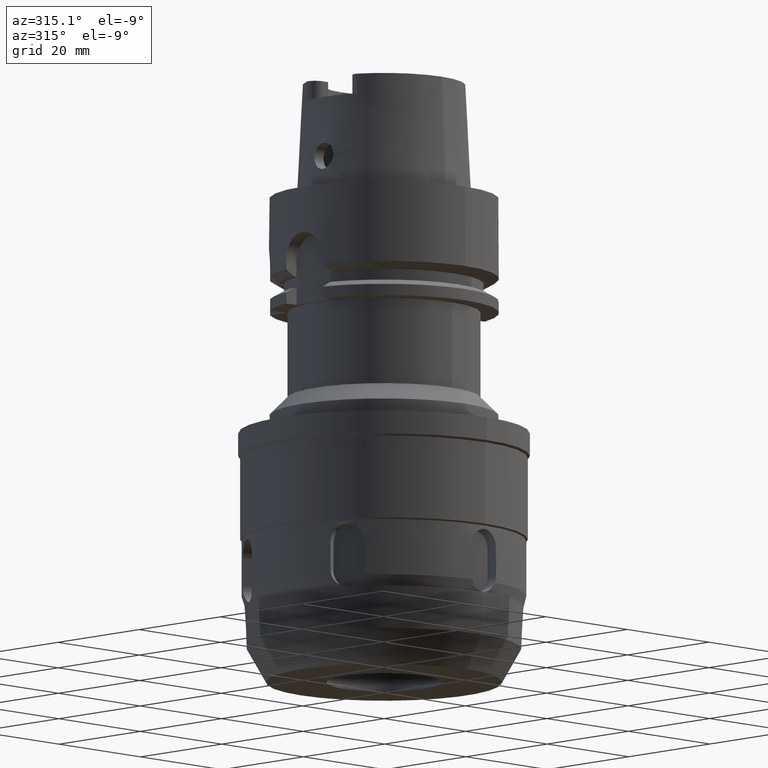
[diagram: clean part render]
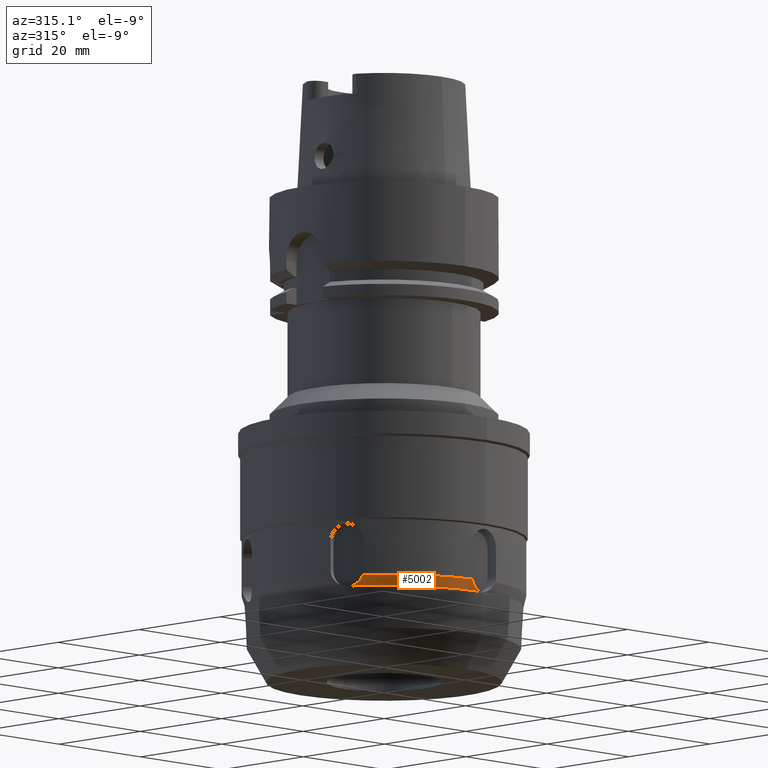
[diagram: same view with one face highlighted and labeled with its STEP entity id]
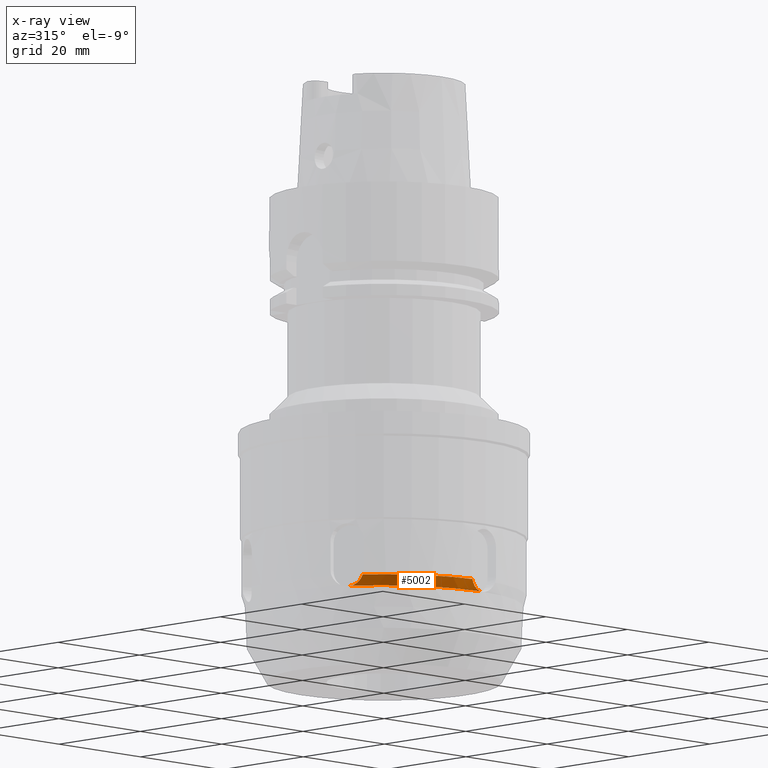
[diagram: x-ray of the same camera — body ghosted, the highlighted face saturated]
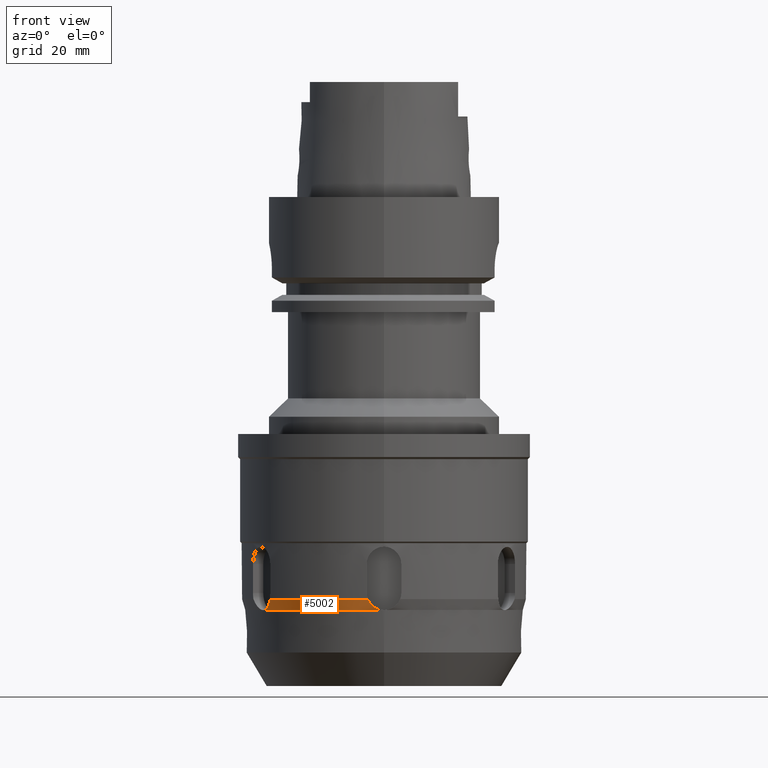
[diagram: same view with one face highlighted and labeled with its STEP entity id]
A machine part, auxiliary view. The second image highlights one B-rep face of the part: STEP entity #5002.
The next image is the same camera in x-ray: the body ghosted, the highlighted face saturated — about 0% of this face is hidden behind the body in this view.
A second angle (front view) of the same face is appended — the face is thin or edge-on in the first view.
In plain terms, the highlighted conical surface has half-angle 15 deg.
Its self-contained STEP definition (entity closure, byte-faithful):
#1008=CARTESIAN_POINT('',(-2.079201848961E1,-1.247709133473E1,
-7.177192446032E1));
#1508=CARTESIAN_POINT('',(-2.079201848961E1,-1.247709133473E1,
-7.177192446032E1));
#1509=CARTESIAN_POINT('',(-2.068981336827E1,-1.266260062391E1,
-7.174274859255E1));
#1510=CARTESIAN_POINT('',(-2.049493641327E1,-1.303043962910E1,
-7.163894974436E1));
#1511=CARTESIAN_POINT('',(-2.024678273927E1,-1.354739102620E1,
-7.135864290779E1));
#1512=CARTESIAN_POINT('',(-2.005430740522E1,-1.401557328495E1,
-7.096291945258E1));
#1513=CARTESIAN_POINT('',(-1.993250652424E1,-1.440987554179E1,
-7.047864577262E1));
#1514=CARTESIAN_POINT('',(-1.990230391034E1,-1.462277435190E1,
-7.009929135996E1));
#1515=CARTESIAN_POINT('',(-1.990187403559E1,-1.471324337131E1,
-6.989986679654E1));
#1520=CARTESIAN_POINT('',(0.E0,0.E0,-6.99E1));
#1521=DIRECTION('',(0.E0,0.E0,1.E0));
#1522=DIRECTION('',(-8.041164376613E-1,-5.944718283341E-1,0.E0));
#1523=AXIS2_PLACEMENT_3D('',#1520,#1521,#1522);
#1528=CARTESIAN_POINT('',(-2.791053671997E0,-2.459212355064E1,
-6.989999824656E1));
#1529=CARTESIAN_POINT('',(-2.712446460367E0,-2.454725859417E1,
-7.009945136657E1));
#1530=CARTESIAN_POINT('',(-2.512597321107E0,-2.446675259169E1,
-7.047974853086E1));
#1531=CARTESIAN_POINT('',(-2.107297384302E0,-2.437465802553E1,
-7.096657039973E1));
#1532=CARTESIAN_POINT('',(-1.602716075032E0,-2.430726550976E1,
-7.136270513573E1));
#1533=CARTESIAN_POINT('',(-1.030439818455E0,-2.426402586338E1,
-7.164118727878E1));
#1534=CARTESIAN_POINT('',(-6.183550048587E-1,-2.424914633103E1,
-7.174314554984E1));
#1535=CARTESIAN_POINT('',(-4.094641777312E-1,-2.424496167236E1,
-7.177192519367E1));
#1540=CARTESIAN_POINT('',(0.E0,0.E0,-7.177192445144E1));
#1541=DIRECTION('',(0.E0,0.E0,-1.E0));
#1542=DIRECTION('',(-1.688642998307E-2,-9.998574140758E-1,0.E0));
#1543=AXIS2_PLACEMENT_3D('',#1540,#1541,#1542);
#3661=VERTEX_POINT('',#1008);
#3662=CARTESIAN_POINT('',(-4.094692356374E-1,-2.424496187166E1,
-7.177192445144E1));
#3663=VERTEX_POINT('',#3662);
#3694=VERTEX_POINT('',#1515);
#3695=CARTESIAN_POINT('',(-2.791044648044E0,-2.459212414113E1,-6.99E1));
#3696=VERTEX_POINT('',#3695);
#4990=CARTESIAN_POINT('',(0.E0,0.E0,-7.083596222572E1));
#4991=DIRECTION('',(0.E0,0.E0,1.E0));
#4992=DIRECTION('',(0.E0,1.E0,0.E0));
#4993=AXIS2_PLACEMENT_3D('',#4990,#4991,#4992);
#4994=CONICAL_SURFACE('',#4993,2.449920967747E1,1.5E1);
#4996=ORIENTED_EDGE('',*,*,#4995,.T.);
#4997=ORIENTED_EDGE('',*,*,#4822,.T.);
#4998=ORIENTED_EDGE('',*,*,#4972,.T.);
#4999=ORIENTED_EDGE('',*,*,#4732,.T.);
#5000=EDGE_LOOP('',(#4996,#4997,#4998,#4999));
#5001=FACE_OUTER_BOUND('',#5000,.F.);
#1516=B_SPLINE_CURVE_WITH_KNOTS('',3,(#1508,#1509,#1510,#1511,#1512,#1513,#1514,
#1515),.UNSPECIFIED.,.F.,.F.,(4,1,1,1,1,4),(0.E0,2.E-1,4.E-1,6.E-1,8.E-1,1.E0),
.UNSPECIFIED.);
#1524=CIRCLE('',#1523,2.475E1);
#1536=B_SPLINE_CURVE_WITH_KNOTS('',3,(#1528,#1529,#1530,#1531,#1532,#1533,#1534,
#1535),.UNSPECIFIED.,.F.,.F.,(4,1,1,1,1,4),(0.E0,2.E-1,4.E-1,6.E-1,8.E-1,1.E0),
.UNSPECIFIED.);
#1544=CIRCLE('',#1543,2.424841935494E1);
#4732=EDGE_CURVE('',#3663,#3661,#1544,.T.);
#4822=EDGE_CURVE('',#3694,#3696,#1524,.T.);
#4972=EDGE_CURVE('',#3696,#3663,#1536,.T.);
#4995=EDGE_CURVE('',#3661,#3694,#1516,.T.);
#5002=ADVANCED_FACE('',(#5001),#4994,.T.);